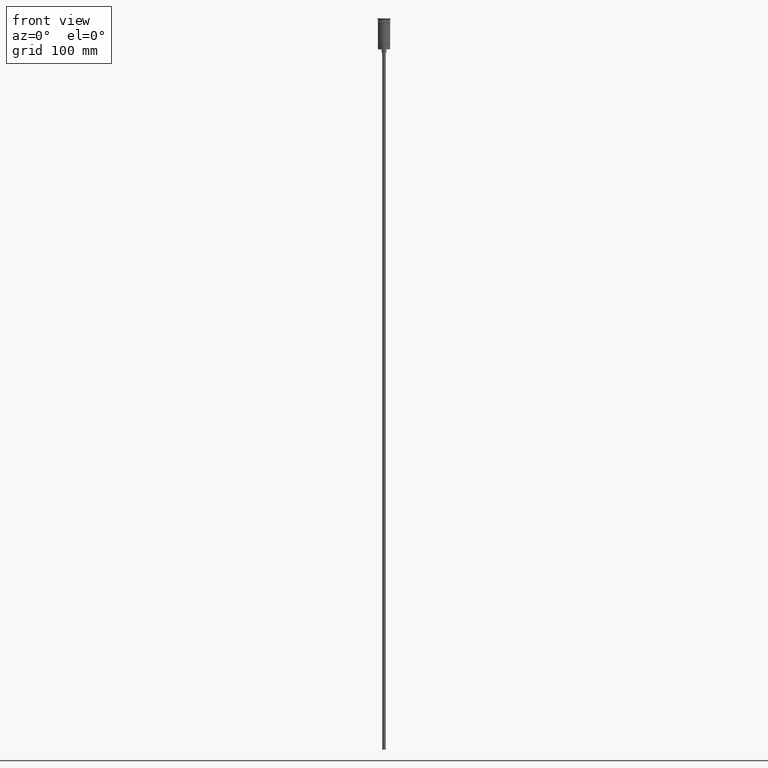
[diagram: clean part render]
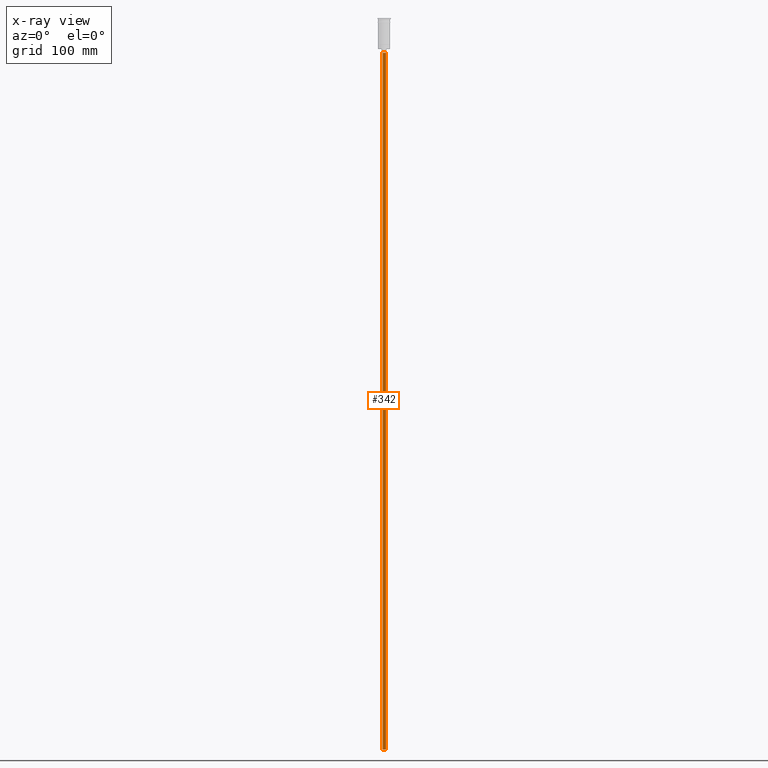
[diagram: x-ray — body ghosted, one internal face saturated and labeled with its STEP entity id]
A machine part, front view, then the same camera in x-ray: the body is ghosted and one INTERNAL B-rep face — a face not visible from any outside direction — is saturated and labeled: STEP entity #342.
In plain terms, the highlighted cylindrical surface (edge-blend (fillet) strip) has radius 1.5 mm, axis along (-0, -0, 1).
Its self-contained STEP definition (entity closure, byte-faithful):
#21 = VECTOR ( 'NONE', #1106, 1000.000000000000000 ) ;
#42 = ORIENTED_EDGE ( 'NONE', *, *, #1319, .T. ) ;
#62 = CARTESIAN_POINT ( 'NONE',  ( 0.000000000000000000, 0.000000000000000000, -626.5000000000000000 ) ) ;
#227 = AXIS2_PLACEMENT_3D ( 'NONE', #62, #1029, #1271 ) ;
#319 = DIRECTION ( 'NONE',  ( -0.000000000000000000, -0.000000000000000000, 1.000000000000000000 ) ) ;
#342 = ADVANCED_FACE ( 'NONE', ( #548 ), #562, .T. ) ;
#356 = CARTESIAN_POINT ( 'NONE',  ( -1.500000000000000222, 1.836970198721030181E-16, -626.5000000000000000 ) ) ;
#401 = DIRECTION ( 'NONE',  ( 0.000000000000000000, 0.000000000000000000, -1.000000000000000000 ) ) ;
#407 = CARTESIAN_POINT ( 'NONE',  ( 1.500000000000000222, 0.000000000000000000, -29.50000000000000000 ) ) ;
#431 = LINE ( 'NONE', #447, #1186 ) ;
#447 = CARTESIAN_POINT ( 'NONE',  ( 1.500000000000000222, 0.000000000000000000, -626.5000000000000000 ) ) ;
#450 = LINE ( 'NONE', #356, #21 ) ;
#548 = FACE_OUTER_BOUND ( 'NONE', #1205, .T. ) ;
#562 = CYLINDRICAL_SURFACE ( 'NONE', #227, 1.500000000000000222 ) ;
#664 = ORIENTED_EDGE ( 'NONE', *, *, #746, .F. ) ;
#722 = EDGE_CURVE ( 'NONE', #949, #1592, #450, .T. ) ;
#746 = EDGE_CURVE ( 'NONE', #949, #1505, #1052, .T. ) ;
#757 = CIRCLE ( 'NONE', #1174, 1.500000000000000222 ) ;
#860 = CARTESIAN_POINT ( 'NONE',  ( -1.500000000000000222, 1.836970198721030181E-16, -626.5000000000000000 ) ) ;
#894 = DIRECTION ( 'NONE',  ( -1.000000000000000000, 0.000000000000000000, 0.000000000000000000 ) ) ;
#949 = VERTEX_POINT ( 'NONE', #860 ) ;
#962 = DIRECTION ( 'NONE',  ( -1.000000000000000000, 0.000000000000000000, 0.000000000000000000 ) ) ;
#1029 = DIRECTION ( 'NONE',  ( -0.000000000000000000, -0.000000000000000000, 1.000000000000000000 ) ) ;
#1052 = CIRCLE ( 'NONE', #1488, 1.500000000000000222 ) ;
#1078 = CARTESIAN_POINT ( 'NONE',  ( 1.500000000000000222, 0.000000000000000000, -626.5000000000000000 ) ) ;
#1087 = CARTESIAN_POINT ( 'NONE',  ( 0.000000000000000000, 0.000000000000000000, -626.5000000000000000 ) ) ;
#1100 = EDGE_CURVE ( 'NONE', #1505, #1329, #431, .T. ) ;
#1106 = DIRECTION ( 'NONE',  ( -0.000000000000000000, -0.000000000000000000, 1.000000000000000000 ) ) ;
#1174 = AXIS2_PLACEMENT_3D ( 'NONE', #1522, #401, #894 ) ;
#1186 = VECTOR ( 'NONE', #319, 1000.000000000000000 ) ;
#1205 = EDGE_LOOP ( 'NONE', ( #664, #1407, #42, #1463 ) ) ;
#1271 = DIRECTION ( 'NONE',  ( 1.000000000000000000, 0.000000000000000000, 0.000000000000000000 ) ) ;
#1319 = EDGE_CURVE ( 'NONE', #1592, #1329, #757, .T. ) ;
#1329 = VERTEX_POINT ( 'NONE', #407 ) ;
#1407 = ORIENTED_EDGE ( 'NONE', *, *, #722, .T. ) ;
#1463 = ORIENTED_EDGE ( 'NONE', *, *, #1100, .F. ) ;
#1488 = AXIS2_PLACEMENT_3D ( 'NONE', #1087, #1582, #962 ) ;
#1505 = VERTEX_POINT ( 'NONE', #1078 ) ;
#1522 = CARTESIAN_POINT ( 'NONE',  ( 0.000000000000000000, 0.000000000000000000, -29.50000000000000000 ) ) ;
#1558 = CARTESIAN_POINT ( 'NONE',  ( -1.500000000000000222, 1.836970198721030181E-16, -29.50000000000000000 ) ) ;
#1582 = DIRECTION ( 'NONE',  ( 0.000000000000000000, 0.000000000000000000, -1.000000000000000000 ) ) ;
#1592 = VERTEX_POINT ( 'NONE', #1558 ) ;